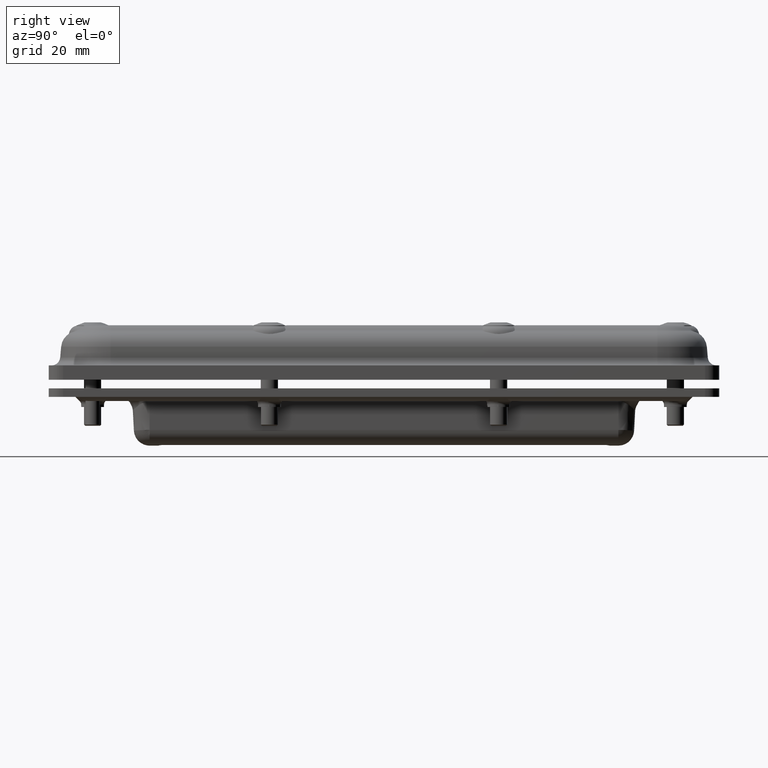
[diagram: clean part render]
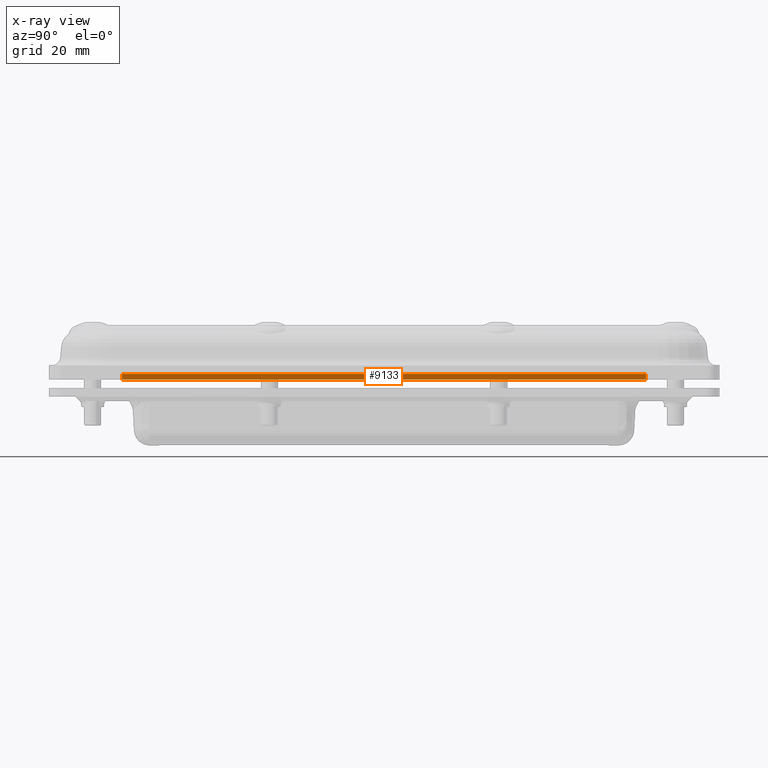
[diagram: x-ray — body ghosted, one internal face saturated and labeled with its STEP entity id]
A machine part, right view, then the same camera in x-ray: the body is ghosted and one INTERNAL B-rep face — a face not visible from any outside direction — is saturated and labeled: STEP entity #9133.
In plain terms, the highlighted planar face has unit normal (1, -0, -0).
Its self-contained STEP definition (entity closure, byte-faithful):
#236=PLANE('',#9826);
#538=FACE_OUTER_BOUND('',#1088,.T.);
#1088=EDGE_LOOP('',(#6543,#6544,#6545,#6546));
#1986=LINE('',#14250,#2642);
#1989=LINE('',#14259,#2645);
#1991=LINE('',#14264,#2647);
#1992=LINE('',#14265,#2648);
#2642=VECTOR('',#11104,1.);
#2645=VECTOR('',#11113,1.);
#2647=VECTOR('',#11119,1.);
#2648=VECTOR('',#11120,1.);
#3853=VERTEX_POINT('',#14244);
#3855=VERTEX_POINT('',#14248);
#3856=VERTEX_POINT('',#14255);
#3858=VERTEX_POINT('',#14258);
#4865=EDGE_CURVE('',#3855,#3853,#1986,.T.);
#4869=EDGE_CURVE('',#3856,#3858,#1989,.T.);
#4872=EDGE_CURVE('',#3858,#3855,#1991,.T.);
#4873=EDGE_CURVE('',#3853,#3856,#1992,.T.);
#6543=ORIENTED_EDGE('',*,*,#4865,.F.);
#6544=ORIENTED_EDGE('',*,*,#4872,.F.);
#6545=ORIENTED_EDGE('',*,*,#4869,.F.);
#6546=ORIENTED_EDGE('',*,*,#4873,.F.);
#9133=ADVANCED_FACE('',(#538),#236,.F.);
#9826=AXIS2_PLACEMENT_3D('',#14263,#11117,#11118);
#11104=DIRECTION('',(6.41847686111421E-17,-4.49084690960502E-16,1.));
#11113=DIRECTION('',(-6.41847686111421E-17,4.49084690960502E-16,-1.));
#11117=DIRECTION('center_axis',(1.,-1.08123136918971E-15,-6.41847686111426E-17));
#11118=DIRECTION('ref_axis',(-1.08123136918971E-15,-1.,-4.69422931792557E-16));
#11119=DIRECTION('',(1.08123136918971E-15,1.,4.69422931792557E-16));
#11120=DIRECTION('',(-1.08123136918971E-15,-1.,-4.69422931792557E-16));
#14244=CARTESIAN_POINT('',(3.55,9.15000000000002,-1.10000000000002));
#14248=CARTESIAN_POINT('',(3.55,9.15000000000002,-1.30000000000003));
#14250=CARTESIAN_POINT('',(3.55,9.15000000000002,-1.10000000000002));
#14255=CARTESIAN_POINT('',(3.54999999999998,-9.14999999999998,-1.10000000000003));
#14258=CARTESIAN_POINT('',(3.54999999999998,-9.14999999999998,-1.30000000000004));
#14259=CARTESIAN_POINT('',(3.54999999999998,-9.14999999999998,-1.10000000000003));
#14263=CARTESIAN_POINT('Origin',(3.55,9.35000000000002,-1.10000000000002));
#14264=CARTESIAN_POINT('',(3.54999999999999,4.67499999990003,-1.30000000000003));
#14265=CARTESIAN_POINT('',(3.54999999999999,-1.75999999999999,-1.1));